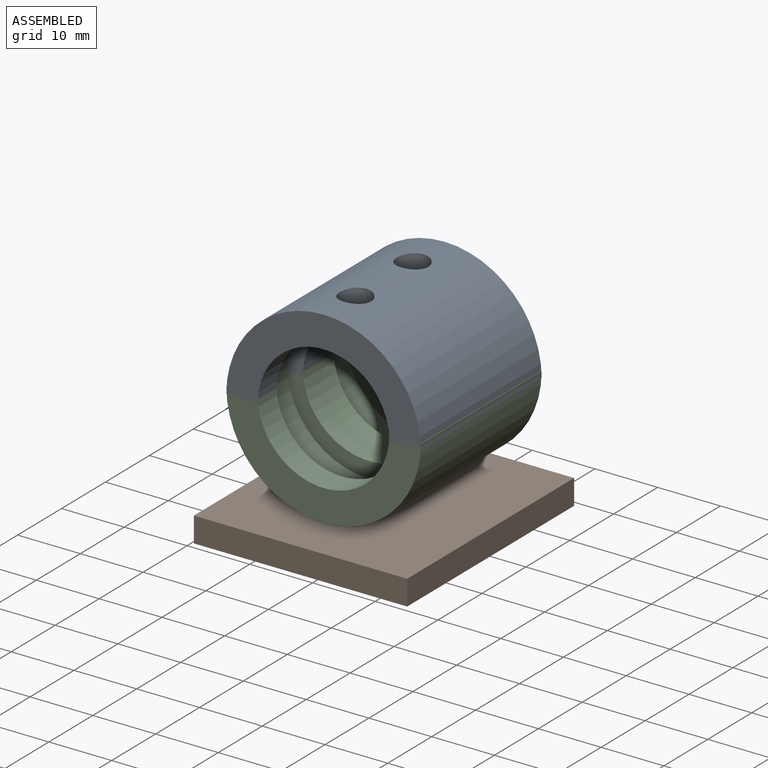
[diagram: assembled view]
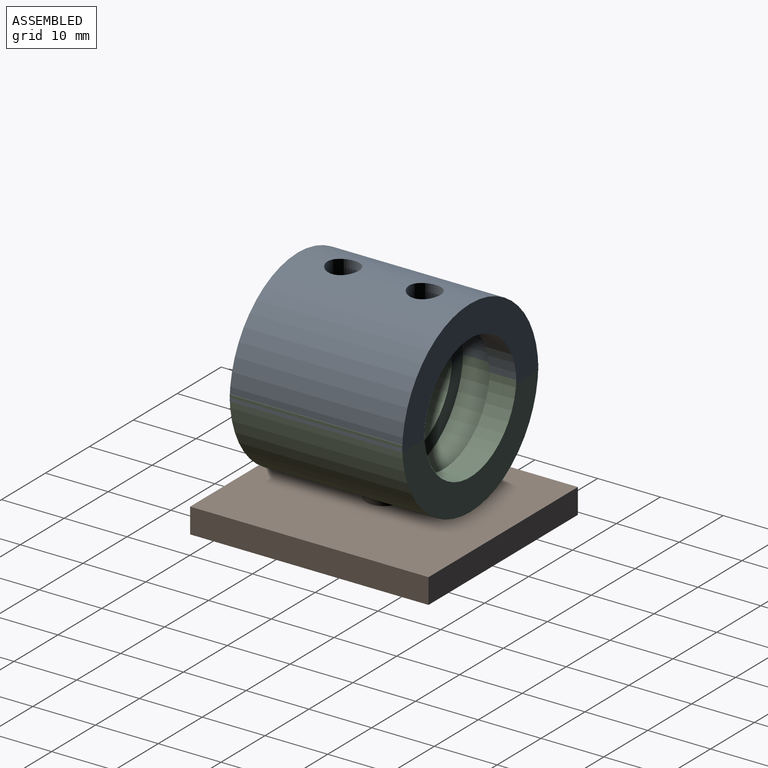
[diagram: assembled view, second angle]
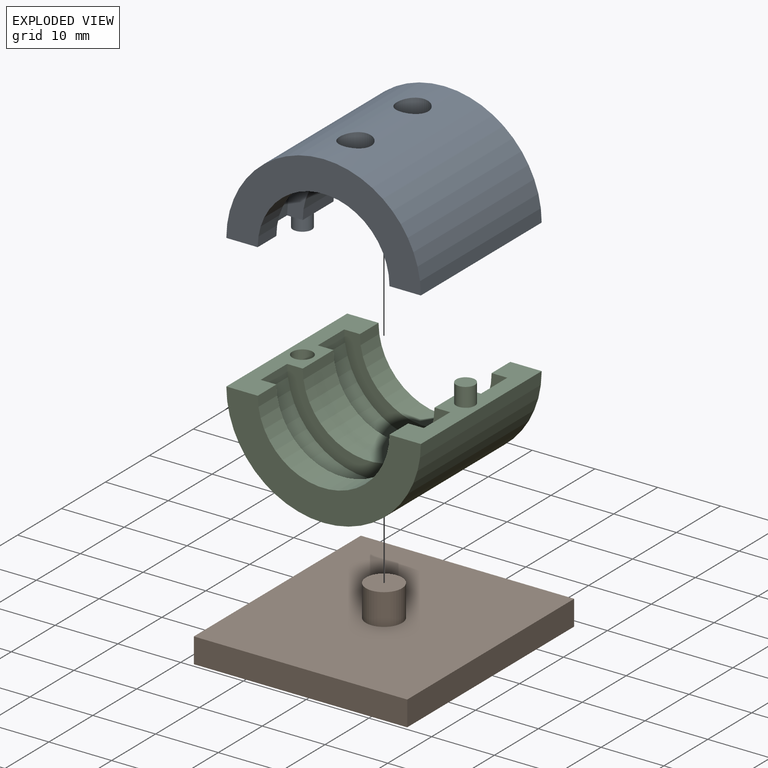
[diagram: exploded view]
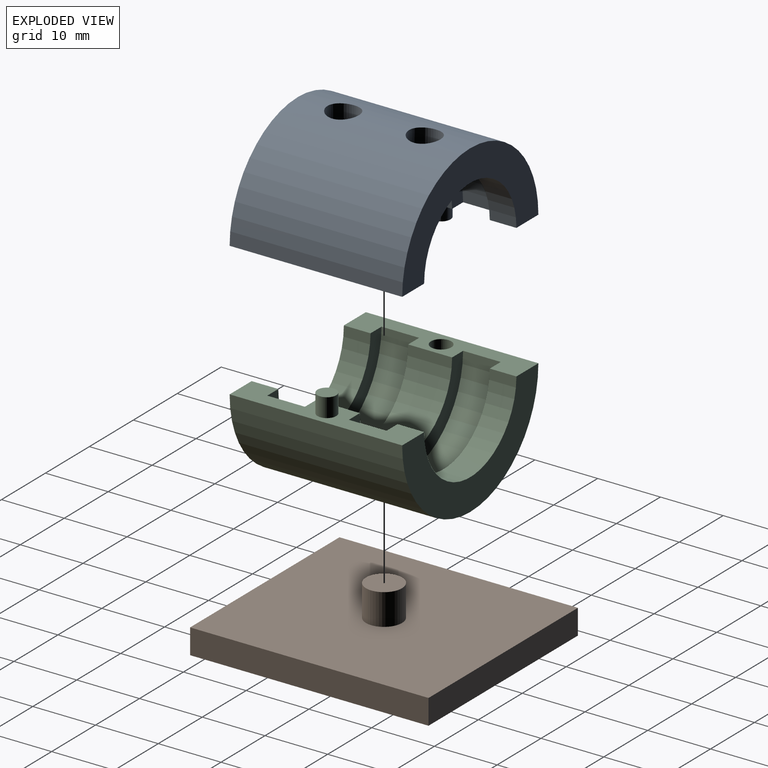
[diagram: exploded view, second angle]
ASSEMBLY  parts=3 mates=2
PART A: 20 faces, bbox 31x27.5x18.5 mm
  f0: cylinder r=10.5mm len=21mm, axis (0,1,0), area 140.2mm2, adj f3,f4,f8,f18
  f1: cylinder r=2.5mm len=5mm, axis (0,0,-1), area 39.6mm2, adj f5,f19
  f2: cylinder r=10.5mm len=21mm, axis (0,1,0), area 230.9mm2, adj f3,f4,f14,f17
  f3: plane 27.5x5mm, normal (0,0,-1), area 100.4mm2, adj f0,f2,f5,f6,f7,f8,f10,f14
  f4: plane 27.5x5mm, normal (0,0,-1), area 99.2mm2, adj f0,f2,f5,f6,f7,f8,f12,f14
  f5: cylinder r=15.5mm len=31mm, axis (0,1,0), area 1299.7mm2, adj f1,f3,f4,f7,f8,f9
  f6: cylinder r=10.5mm len=21mm, axis (0,1,0), area 140.2mm2, adj f3,f4,f7,f15
  f7: plane 31x15.5mm, normal (0,-1,0), area 204.2mm2, adj f3,f4,f5,f6
  f8: plane 31x15.5mm, normal (0,1,0), area 204.2mm2, adj f0,f3,f4,f5
  f9: cylinder r=2.5mm len=5mm, axis (0,0,-1), area 39.6mm2, adj f5,f16
  f10: cylinder r=1.5mm len=3mm, axis (0,0,1), area 28.3mm2, adj f3,f11
  f11: plane 3x3mm, normal (0,0,-1), area 7.1mm2, adj f10
  f12: cylinder r=1.62mm len=4mm, axis (0,0,-1), area 40.8mm2, adj f4,f13
  f13: plane 3.25x3.25mm, normal (0,0,-1), area 8.3mm2, adj f12
  f14: plane 26x13mm, normal (0,-1,0), area 92.3mm2, adj f2,f3,f4,f16
  f15: plane 26x13mm, normal (0,1,0), area 92.3mm2, adj f3,f4,f6,f16
  f16: cylinder r=13mm len=26mm, axis (0,-1,0), area 225.3mm2, adj f3,f4,f9,f14,f15
  f17: plane 26x13mm, normal (0,1,0), area 92.3mm2, adj f2,f3,f4,f19
  f18: plane 26x13mm, normal (0,-1,0), area 92.3mm2, adj f0,f3,f4,f19
  f19: cylinder r=13mm len=26mm, axis (0,1,0), area 225.3mm2, adj f1,f3,f4,f17,f18
PART B: 13 faces, bbox 34x9x38 mm
  f0: plane 34x4mm, normal (0,0,1), area 136mm2, adj f1,f3,f4,f11
  f1: plane 38x4mm, normal (-1,0,0), area 152mm2, adj f0,f2,f4,f11
  f2: plane 34x4mm, normal (0,0,-1), area 136mm2, adj f1,f3,f4,f11
  f3: plane 38x4mm, normal (1,0,0), area 152mm2, adj f0,f2,f4,f11
  f4: plane 38x34mm, normal (0,-1,0), area 1266mm2, adj f0,f1,f2,f3,f5
  f5: cylinder r=2.88mm len=5.75mm, axis (0,1,0), area 90.3mm2, adj f4,f6
  f6: plane 5.75x5.75mm, normal (0,-1,0), area 26mm2, adj f5
  f7: plane 34x2mm, normal (1,0,0), area 68mm2, adj f8,f10,f11,f12
  f8: plane 30x2mm, normal (0,0,-1), area 60mm2, adj f7,f9,f11,f12
  f9: plane 34x2mm, normal (-1,0,0), area 68mm2, adj f8,f10,f11,f12
  f10: plane 30x2mm, normal (0,0,1), area 60mm2, adj f7,f9,f11,f12
  f11: plane 38x34mm, normal (0,1,0), area 272mm2, adj f0,f1,f2,f3,f7,f8,f9,f10
  f12: plane 34x30mm, normal (0,1,0), area 1020mm2, adj f7,f8,f9,f10
PART C: 20 faces, bbox 31x27.5x18.5 mm
  f0: cylinder r=10.5mm len=21mm, axis (0,1,0), area 140.2mm2, adj f1,f3,f7,f17
  f1: plane 27.5x5mm, normal (0,0,-1), area 100.4mm2, adj f0,f2,f4,f5,f6,f7,f8,f12
  f2: cylinder r=10.5mm len=21mm, axis (0,1,0), area 230.9mm2, adj f1,f3,f13,f16
  f3: plane 27.5x5mm, normal (0,0,-1), area 99.2mm2, adj f0,f2,f4,f5,f6,f7,f10,f12
  f4: cylinder r=15.5mm len=31mm, axis (0,1,0), area 1310.7mm2, adj f1,f3,f6,f7,f18
  f5: cylinder r=10.5mm len=21mm, axis (0,1,0), area 140.2mm2, adj f1,f3,f6,f14
  f6: plane 31x15.5mm, normal (0,-1,0), area 204.2mm2, adj f1,f3,f4,f5
  f7: plane 31x15.5mm, normal (0,1,0), area 204.2mm2, adj f0,f1,f3,f4
  f8: cylinder r=1.5mm len=3mm, axis (0,0,1), area 28.3mm2, adj f1,f9
  f9: plane 3x3mm, normal (0,0,-1), area 7.1mm2, adj f8
  f10: cylinder r=1.62mm len=4mm, axis (0,0,-1), area 40.8mm2, adj f3,f11
  f11: plane 3.25x3.25mm, normal (0,0,-1), area 8.3mm2, adj f10
  f12: cylinder r=13mm len=26mm, axis (0,-1,0), area 245mm2, adj f1,f3,f13,f14
  f13: plane 26x13mm, normal (0,-1,0), area 92.3mm2, adj f1,f2,f3,f12
  f14: plane 26x13mm, normal (0,1,0), area 92.3mm2, adj f1,f3,f5,f12
  f15: cylinder r=13mm len=26mm, axis (0,1,0), area 245mm2, adj f1,f3,f16,f17
  f16: plane 26x13mm, normal (0,1,0), area 92.3mm2, adj f1,f2,f3,f15
  f17: plane 26x13mm, normal (0,-1,0), area 92.3mm2, adj f0,f1,f3,f15
  f18: cylinder r=3mm len=6mm, axis (0,0,1), area 63.2mm2, adj f4,f19
  f19: plane 6x6mm, normal (0,0,1), area 28.3mm2, adj f18
PLACE A t=(-0.12,7.89,-4.84)mm fixed
PLACE B rot(axis=(0,-0.71,0.71),180deg) t=(-0.12,7.89,-22.84)mm
PLACE C rot(axis=(0,1,0),180deg) t=(-0.12,7.89,-3.84)mm
MATE fastened A.f12 <-> C.f8  axis (0,0,-1) through (12.88,7.89,-0.84)mm
MATE fastened B.f5 <-> C.f18  axis (0,0,1) through (-0.12,7.89,-15.84)mm
